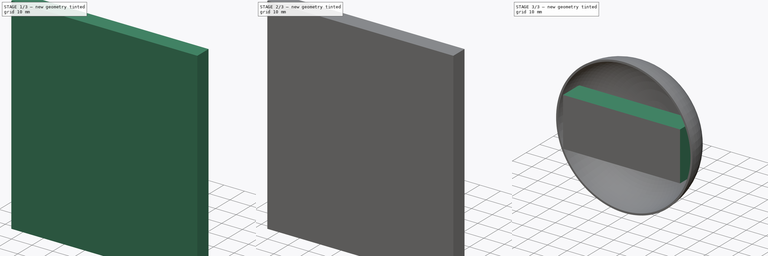
[diagram: build sequence overview — one tinted view per stage of 3, left to right]
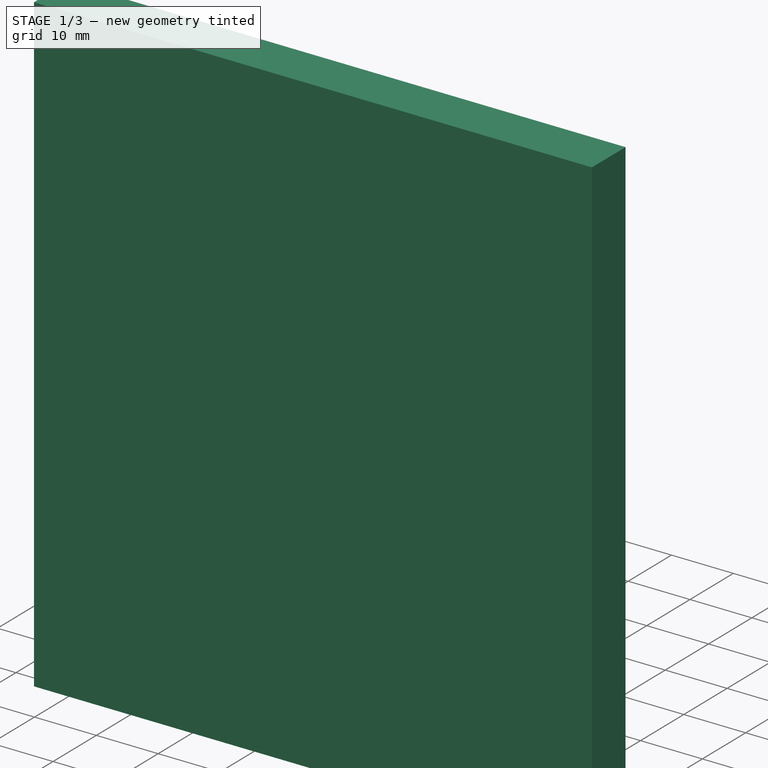
[diagram: stage 1 of 3 — iso view after this stage's code; geometry added in this stage tinted green]
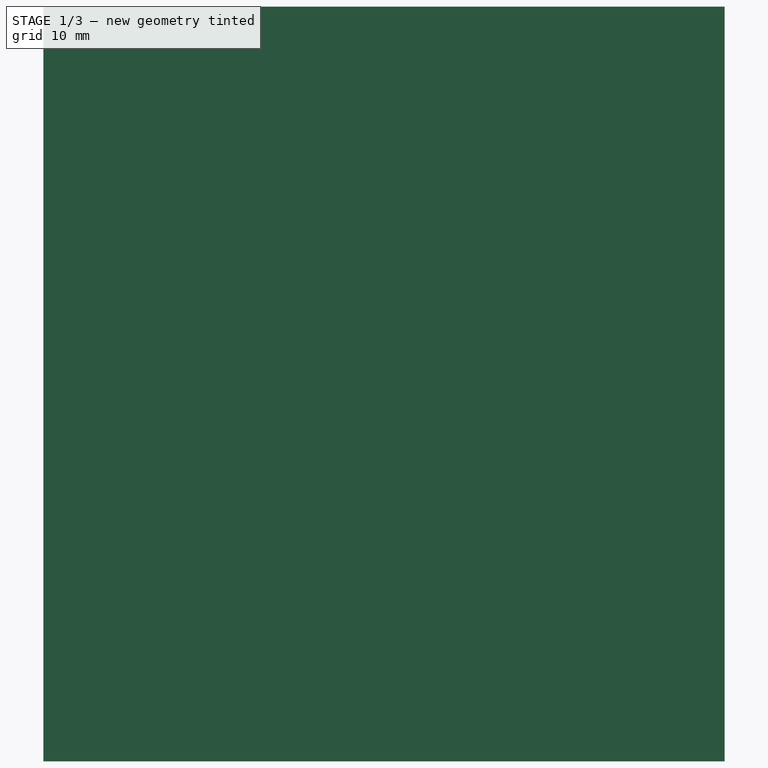
[diagram: stage 1 of 3 — front view after this stage's code; geometry added in this stage tinted green]
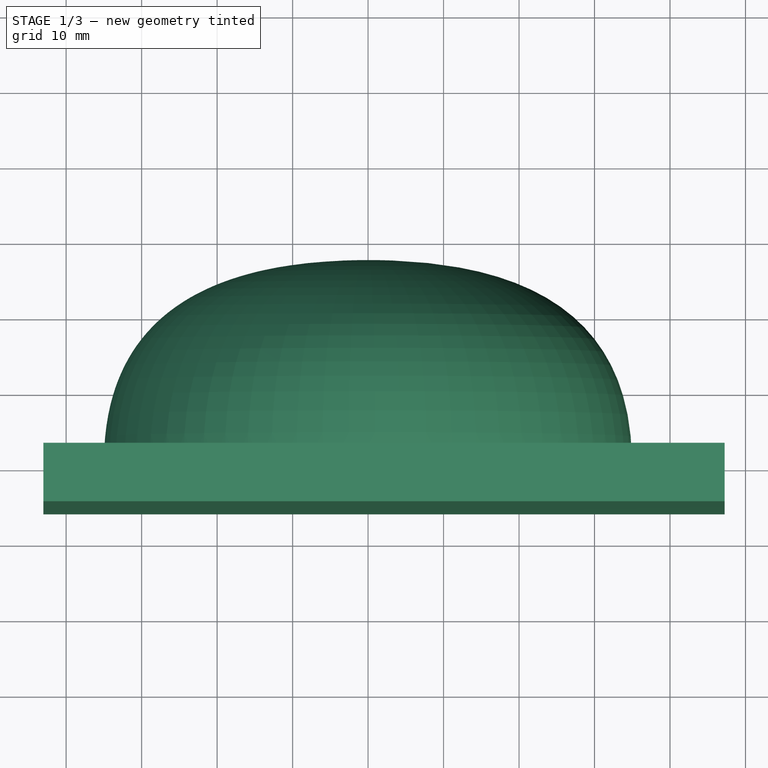
[diagram: stage 1 of 3 — top view after this stage's code; geometry added in this stage tinted green]
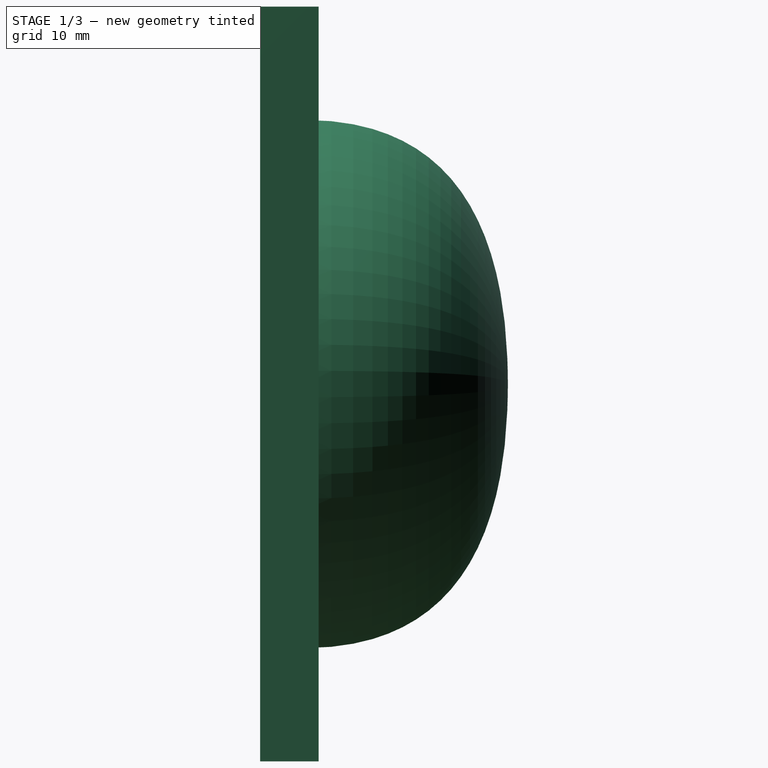
[diagram: stage 1 of 3 — right view after this stage's code; geometry added in this stage tinted green]
FCSTD DOCUMENT  (FreeCAD 0.17R13541 (Git))
Label: air-gallet
License: All rights reserved
LicenseURL: http://en.wikipedia.org/wiki/All_rights_reserved
objects: Sketcher::SketchObject×4, PartDesign::Body×3, PartDesign::Pad×2, PartDesign::Revolution×1, PartDesign::Fillet×1, PartDesign::Pocket×1, PartDesign::PolarPattern×1, Part::Cut×1
note: 18 computed .brp shape members not serialized (recipe doc carries the construction recipe); baked Part::Feature solids carry a one-line shape summary decoded from their .brp

FEATURE [Sketcher::SketchObject] Sketch
  MapMode = 5
  Support = -> [XY_Plane]
  sketch-geometry (16):
    g0: LineSegment StartX=0 StartY=0 StartZ=0 EndX=-35 EndY=0 EndZ=0
    g1: Circle [constr] CenterX=-35 CenterY=0 CenterZ=0 NormalX=0 NormalY=0 NormalZ=1 AngleXU=0 Radius=2
    g2: Circle [constr] CenterX=-35 CenterY=27 CenterZ=0 NormalX=0 NormalY=0 NormalZ=1 AngleXU=0 Radius=2
    g3: Circle [constr] CenterX=0 CenterY=27 CenterZ=0 NormalX=0 NormalY=0 NormalZ=1 AngleXU=0 Radius=2
    g4: BSplineCurve PolesCount=3 KnotsCount=2 Degree=2 IsPeriodic=0
    g5: GeomPoint [constr] X=-35 Y=0 Z=0
    g6: GeomPoint [constr] X=0 Y=27 Z=0
    g7: LineSegment StartX=0 StartY=27 StartZ=0 EndX=0 EndY=26.6 EndZ=0
    g8: LineSegment StartX=0 StartY=0 StartZ=0 EndX=0 EndY=0.6 EndZ=0
    g9: LineSegment StartX=0 StartY=0.6 StartZ=0 EndX=-34 EndY=0.6 EndZ=0
    g10: Circle [constr] CenterX=0 CenterY=26.6 CenterZ=0 NormalX=0 NormalY=0 NormalZ=1 AngleXU=0 Radius=4
    g11: Circle [constr] CenterX=-34.6 CenterY=26.6 CenterZ=0 NormalX=0 NormalY=0 NormalZ=1 AngleXU=0 Radius=4
    g12: Circle [constr] CenterX=-34 CenterY=0.6 CenterZ=0 NormalX=0 NormalY=0 NormalZ=1 AngleXU=0 Radius=4
    g13: BSplineCurve PolesCount=3 KnotsCount=2 Degree=2 IsPeriodic=0
    g14: GeomPoint [constr] X=0 Y=26.6 Z=0
    g15: GeomPoint [constr] X=-34 Y=0.6 Z=0
  constraints (37):
    c: Radius(g1) = 2
    c: Equal(g1,g2)
    c: Equal(g1,g3)
    c: InternalAlignment(g1,g4)
    c: InternalAlignment(g2,g4)
    c: InternalAlignment(g3,g4)
    c: InternalAlignment(g5,g4)
    c: InternalAlignment(g6,g4)
    c: Coincident(g-1,g0)
    c: Horizontal(g0)
    c: Coincident(g0,g1)
    c: PointOnObject(g3,g-2)
    c: DistanceX(g0,g0) = 35
    c: DistanceY(g-1,g3) = 27
    c: DistanceY(g0,g2) = 27
    c: DistanceX(g2,g3) = 35
    c: Coincident(g0,g8)
    c: Vertical(g8)
    c: Vertical(g7)
    c: DistanceY(g7,g7) = 0.4
    c: Coincident(g3,g7)
    c: DistanceY(g8,g8) = 0.6
    c: Horizontal(g9)
    c: DistanceX(g0,g9) = 1
    c: Radius(g10) = 4
    c: Equal(g10,g11)
    c: Equal(g10,g12)
    c: InternalAlignment(g10,g13)
    c: InternalAlignment(g11,g13)
    c: InternalAlignment(g12,g13)
    c: InternalAlignment(g14,g13)
    c: InternalAlignment(g15,g13)
    c: Coincident(g12,g9)
    c: Coincident(g8,g9)
    c: DistanceX(g2,g11) = 0.4
    c: DistanceY(g11,g2) = 0.4
    c: Coincident(g7,g10)
FEATURE [PartDesign::Revolution] Revolution
  Angle = 360
  Axis = (0,1,0)
  Base = (0,0,0)
  Profile = -> Sketch
  ReferenceAxis = -> Sketch [V_Axis]
FEATURE [PartDesign::Body] Body
  Group = -> [Sketch,Revolution,Fillet,Sketch002,Pocket,PolarPattern]
  Origin = -> Origin
  Tip = -> PolarPattern
FEATURE [Sketcher::SketchObject] Sketch003
  MapMode = 5
  Support = -> [XY_Plane002]
  sketch-geometry (4):
    g0: LineSegment StartX=-43.0128 StartY=1.94011 StartZ=0 EndX=47.2311 EndY=1.94011 EndZ=0
    g1: LineSegment StartX=47.2311 StartY=1.94011 StartZ=0 EndX=47.2311 EndY=-5.81434 EndZ=0
    g2: LineSegment StartX=47.2311 StartY=-5.81434 StartZ=0 EndX=-43.0128 EndY=-5.81434 EndZ=0
    g3: LineSegment StartX=-43.0128 StartY=-5.81434 StartZ=0 EndX=-43.0128 EndY=1.94011 EndZ=0
  constraints (8):
    c: Coincident(g0,g1)
    c: Coincident(g1,g2)
    c: Coincident(g2,g3)
    c: Coincident(g3,g0)
    c: Horizontal(g0)
    c: Horizontal(g2)
    c: Vertical(g1)
    c: Vertical(g3)
FEATURE [PartDesign::Pad] Pad001
  Length = 100
  Length2 = 100
  Midplane = true
  Profile = -> Sketch003
  Type = 0
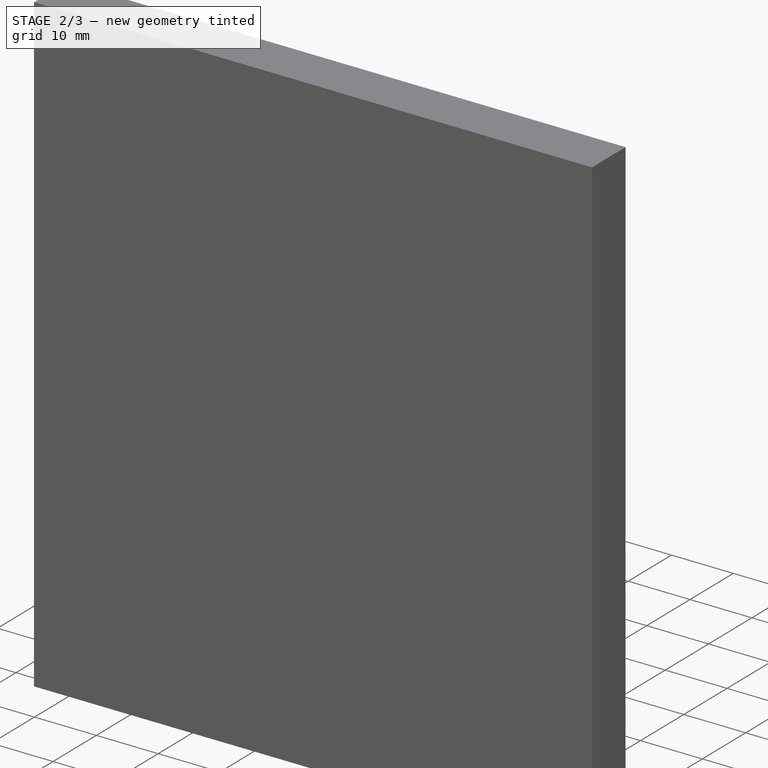
[diagram: stage 2 of 3 — iso view after this stage's code; geometry added in this stage tinted green]
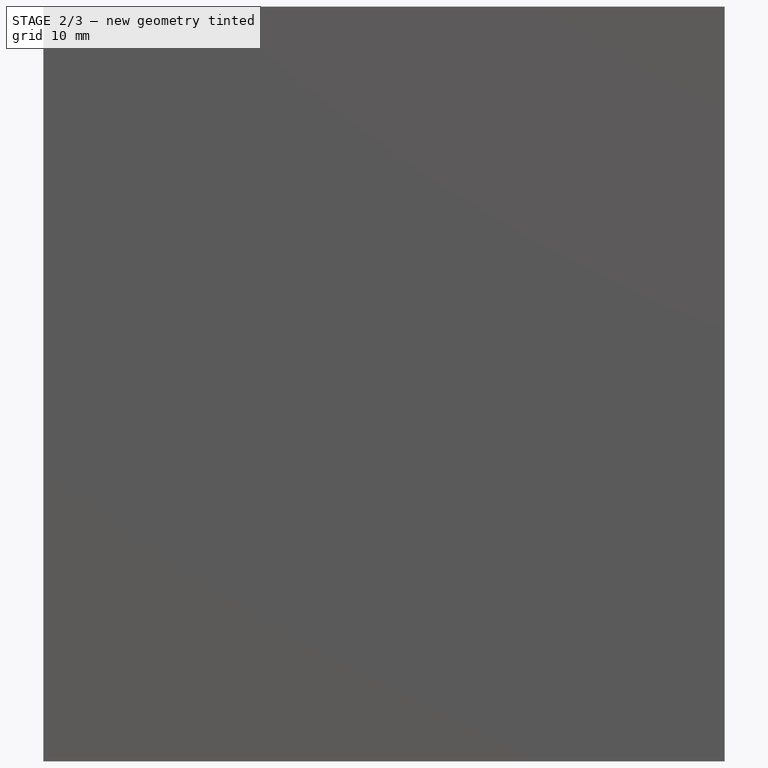
[diagram: stage 2 of 3 — front view after this stage's code; geometry added in this stage tinted green]
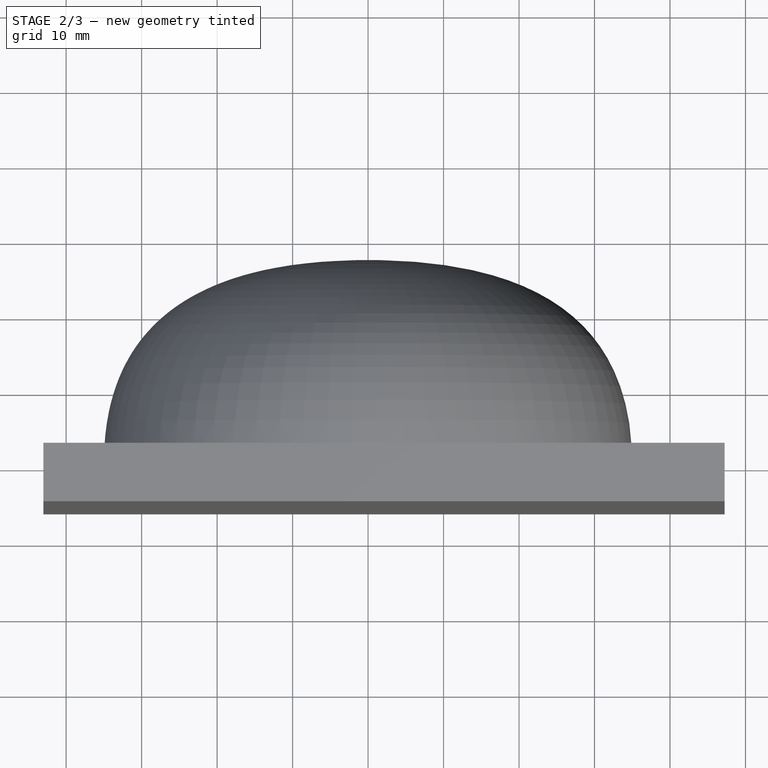
[diagram: stage 2 of 3 — top view after this stage's code; geometry added in this stage tinted green]
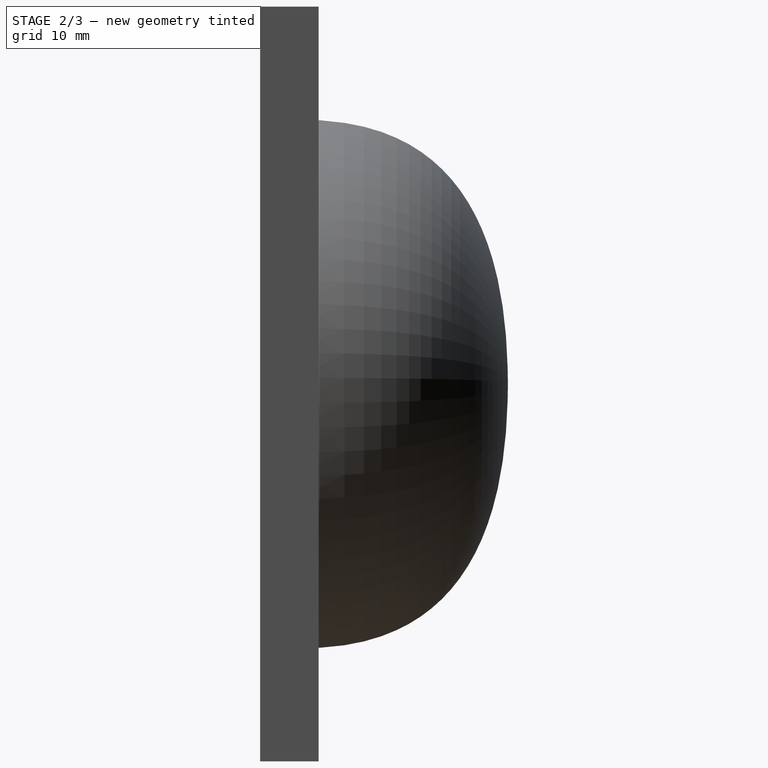
[diagram: stage 2 of 3 — right view after this stage's code; geometry added in this stage tinted green]
FEATURE [PartDesign::Fillet] Fillet
  Base = -> Revolution [Edge1]
  BaseFeature = -> Revolution
  Radius = 2
FEATURE [PartDesign::Body] Body001  label="board-dummy"
  Group = -> [Sketch001,Pad]
  Origin = -> Origin001
  Placement = pos=(0,0.6,0) rot=(0,0,1;0rad)
  Tip = -> Pad
FEATURE [Sketcher::SketchObject] Sketch002
  MapMode = 5
  Placement = pos=(0,0,0) rot=(1,0,0;1.5708rad)
  Support = -> [Fillet]
  sketch-geometry (1):
    g0: Circle CenterX=0.059124 CenterY=30 CenterZ=0 NormalX=0 NormalY=0 NormalZ=1 AngleXU=0 Radius=0.8
  constraints (2):
    c: Radius(g0) = 0.8
    c: DistanceY(g-1,g0) = 30
FEATURE [PartDesign::Pocket] Pocket
  BaseFeature = -> Fillet
  Length = 5
  Length2 = 100
  Profile = -> Sketch002
  Type = 0
FEATURE [PartDesign::PolarPattern] PolarPattern
  Angle = 360
  Axis = -> Y_Axis
  BaseFeature = -> Pocket
  Occurrences = 10
  Originals = -> [Pocket]
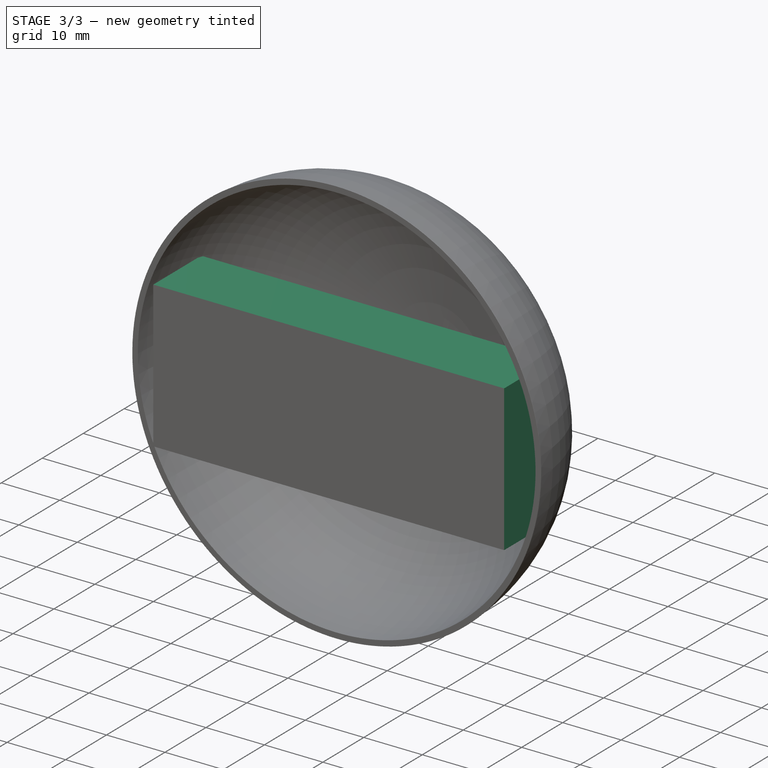
[diagram: stage 3 of 3 — iso view after this stage's code; geometry added in this stage tinted green]
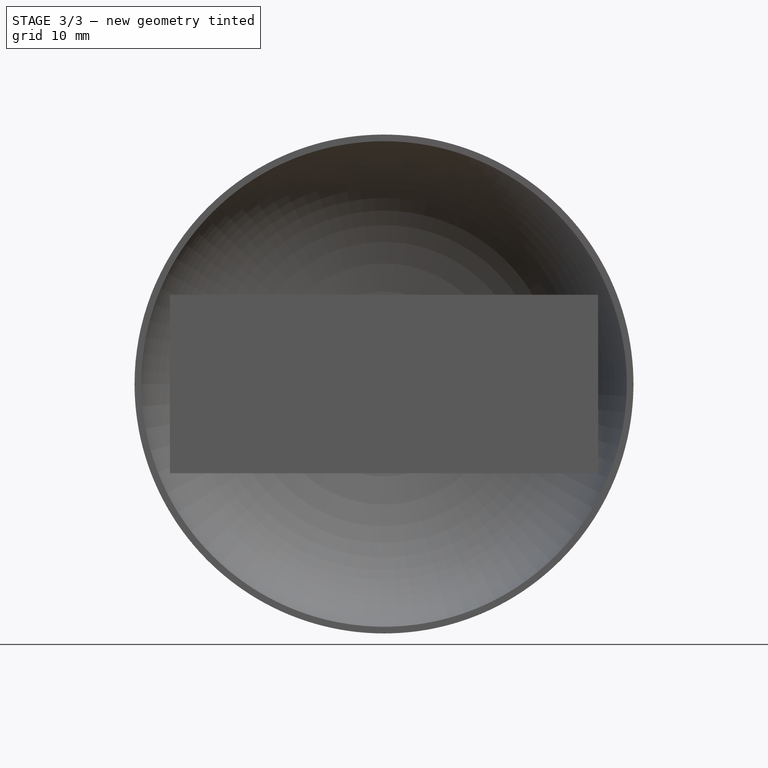
[diagram: stage 3 of 3 — front view after this stage's code; geometry added in this stage tinted green]
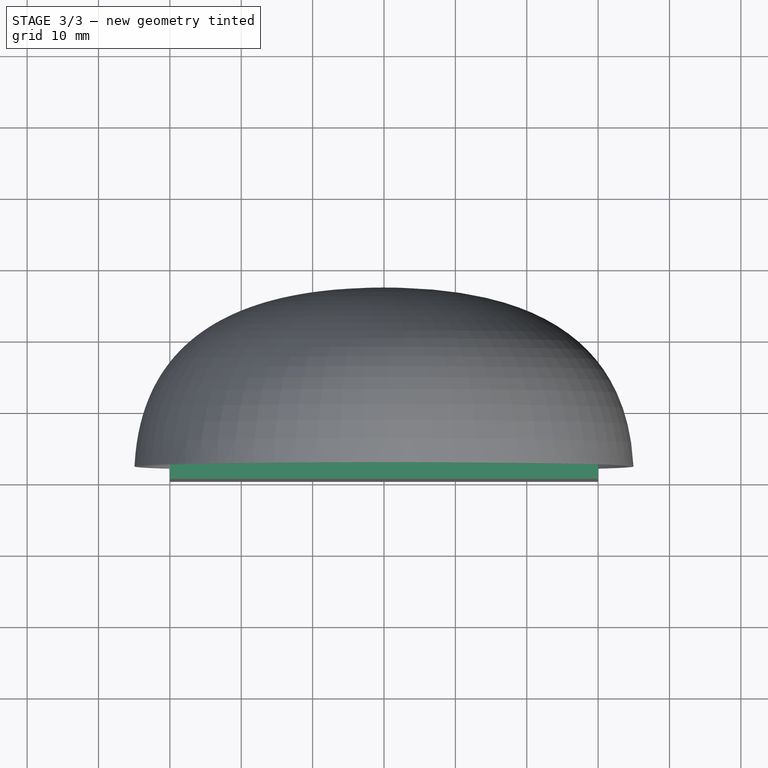
[diagram: stage 3 of 3 — top view after this stage's code; geometry added in this stage tinted green]
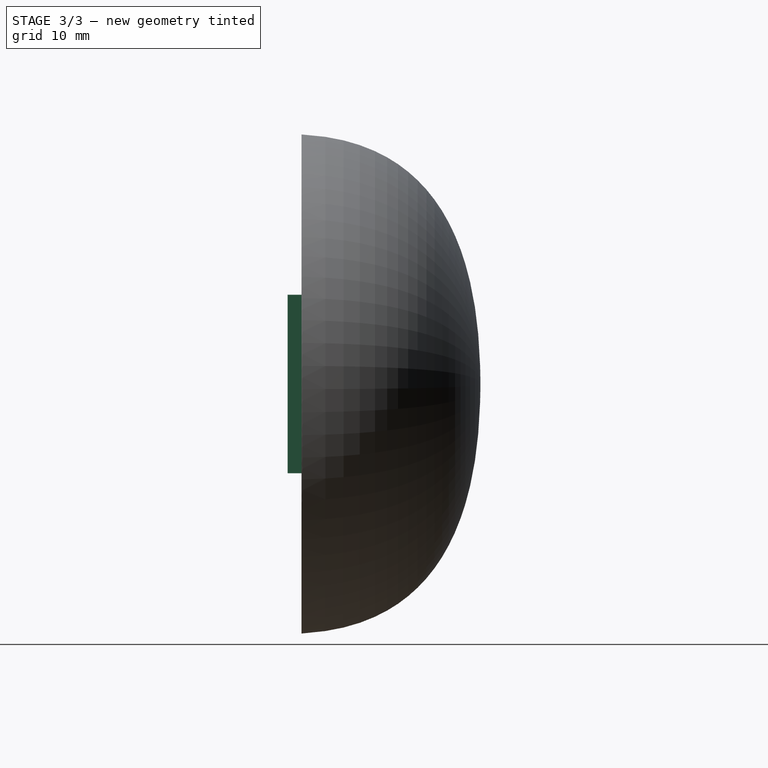
[diagram: stage 3 of 3 — right view after this stage's code; geometry added in this stage tinted green]
FEATURE [Sketcher::SketchObject] Sketch001
  MapMode = 5
  Placement = pos=(0,0,0) rot=(1,0,0;1.5708rad)
  Support = -> [XZ_Plane001]
  sketch-geometry (6):
    g0: LineSegment StartX=-30 StartY=12.5 StartZ=0 EndX=30 EndY=12.5 EndZ=0
    g1: LineSegment StartX=30 StartY=12.5 StartZ=0 EndX=30 EndY=-12.5 EndZ=0
    g2: LineSegment StartX=30 StartY=-12.5 StartZ=0 EndX=-30 EndY=-12.5 EndZ=0
    g3: LineSegment StartX=-30 StartY=-12.5 StartZ=0 EndX=-30 EndY=12.5 EndZ=0
    g4: LineSegment [constr] StartX=-53.9856 StartY=-22.494 StartZ=0 EndX=107.673 EndY=44.8636 EndZ=0
    g5: LineSegment [constr] StartX=-46.6283 StartY=19.4285 StartZ=0 EndX=124.575 EndY=-51.9062 EndZ=0
  constraints (16):
    c: Coincident(g0,g1)
    c: Coincident(g1,g2)
    c: Coincident(g2,g3)
    c: Coincident(g3,g0)
    c: Horizontal(g0)
    c: Horizontal(g2)
    c: Vertical(g1)
    c: Vertical(g3)
    c: Distance(g0,g2) = 65
    c: DistanceY(g1,g1) = 25
    c: PointOnObject(g0,g4)
    c: PointOnObject(g2,g4)
    c: PointOnObject(g-1,g4)
    c: PointOnObject(g1,g5)
    c: PointOnObject(g0,g5)
    c: PointOnObject(g-1,g5)
FEATURE [PartDesign::Pad] Pad
  Length = 11.7
  Length2 = 100
  Placement = pos=(0,0,0) rot=(1,0,0;1.5708rad)
  Profile = -> Sketch001
  Reversed = true
  Type = 0
FEATURE [PartDesign::Body] Body002  label="masque"
  Group = -> [Sketch003,Pad001]
  Origin = -> Origin002
  Tip = -> Pad001
FEATURE [Part::Cut] Cut
  Base = -> Body
  Tool = -> Body002
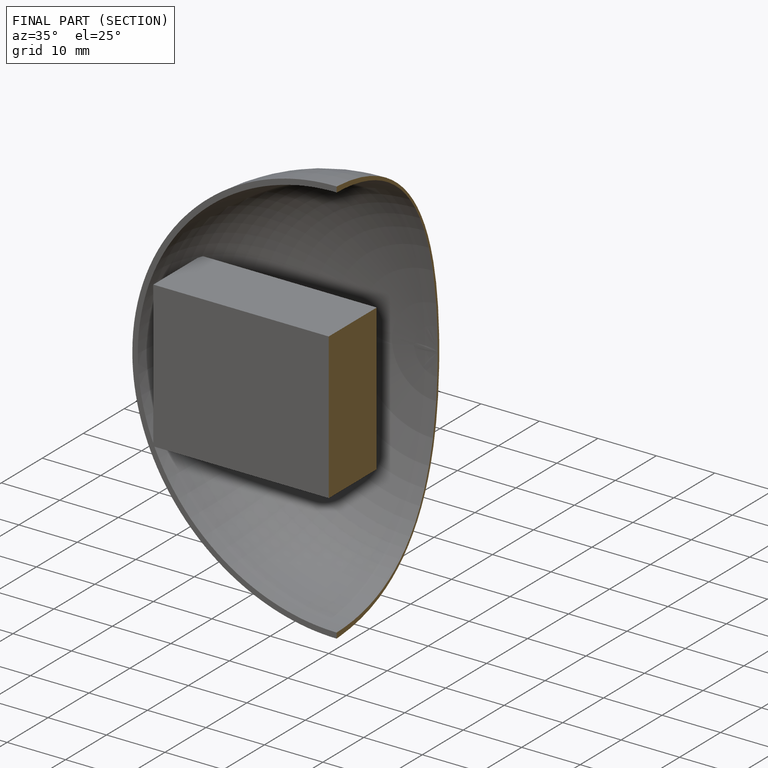
[diagram: finished part — half-section view (interior)]
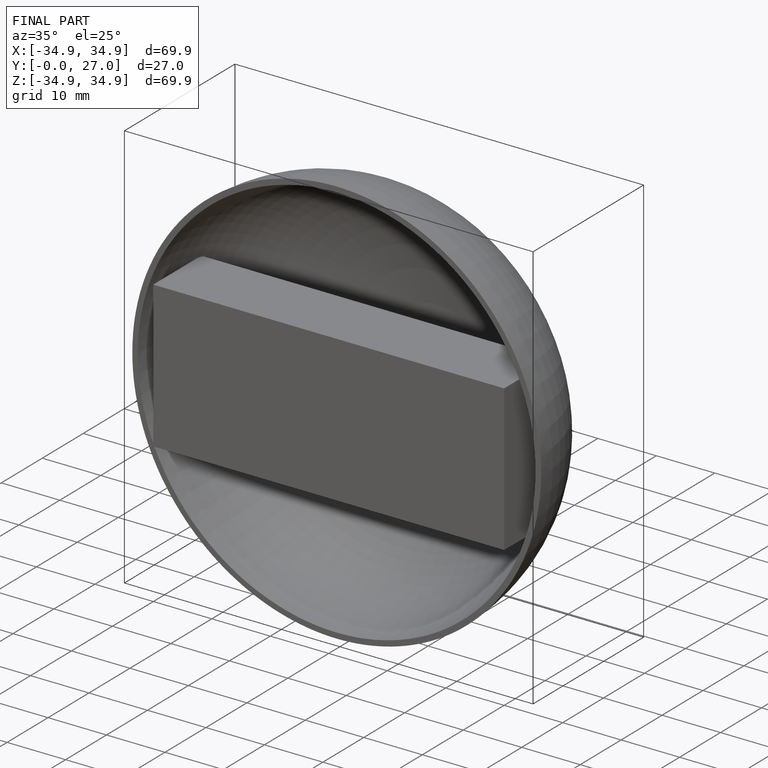
[diagram: finished part — iso view with bounding-box wireframe]
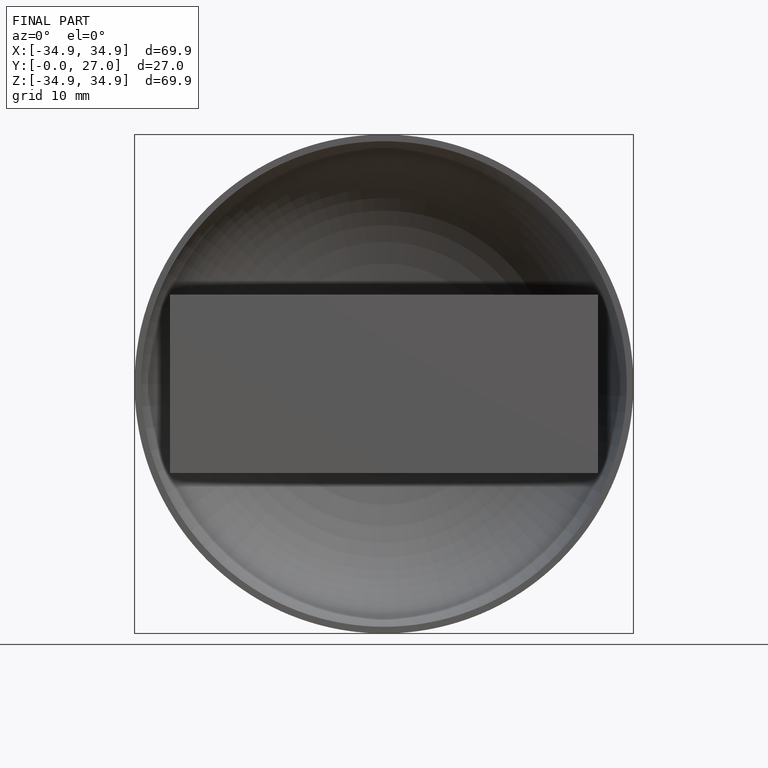
[diagram: finished part — front view with bounding-box wireframe]
